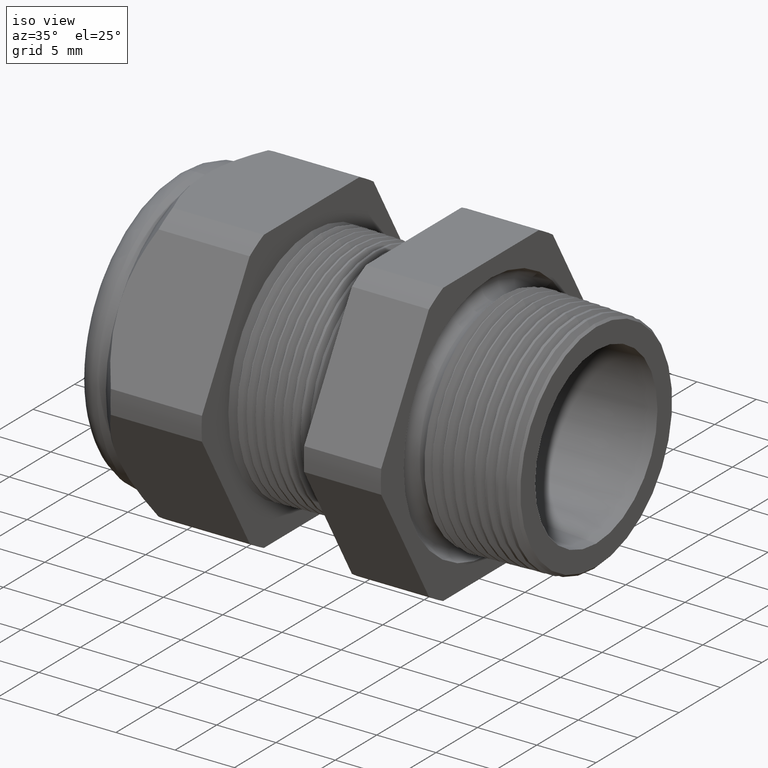
[diagram: clean part render]
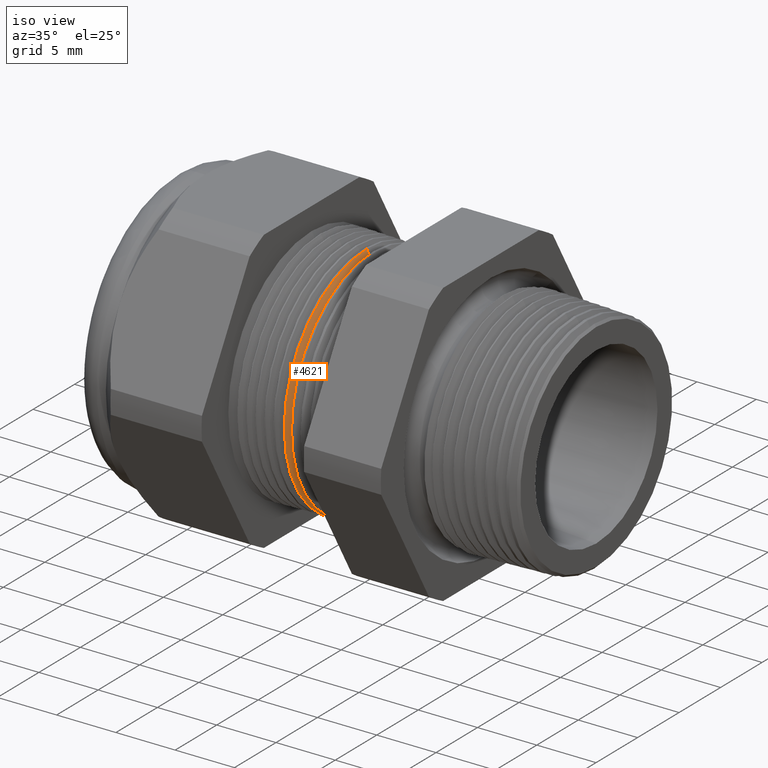
[diagram: same view with one face highlighted and labeled with its STEP entity id]
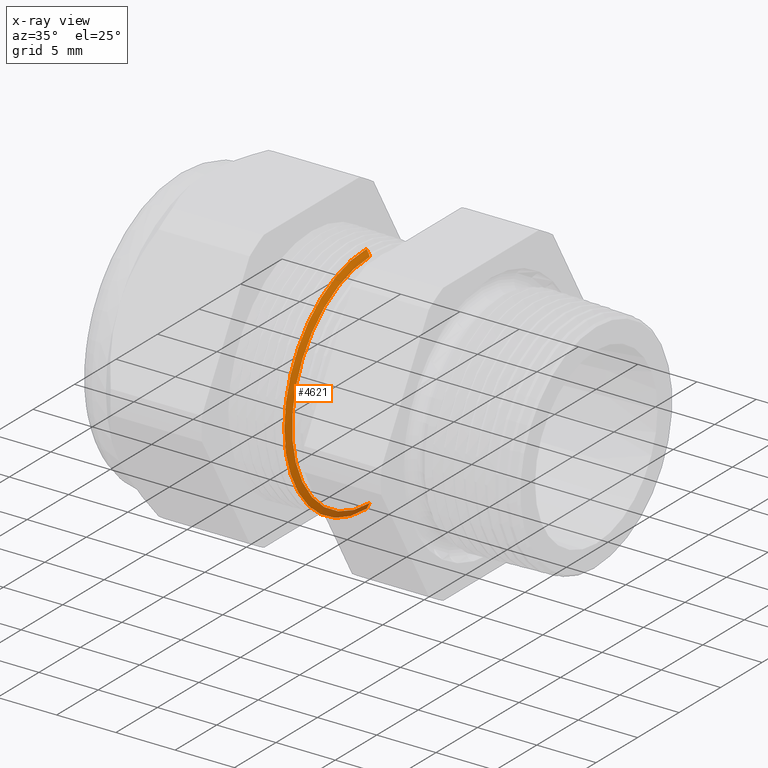
[diagram: x-ray of the same camera — body ghosted, the highlighted face saturated]
A machine part, iso view. The second image highlights one B-rep face of the part: STEP entity #4621.
The next image is the same camera in x-ray: the body ghosted, the highlighted face saturated — about 11% of this face is hidden behind the body in this view.
In plain terms, the highlighted conical surface has half-angle 61.5 deg.
Its self-contained STEP definition (entity closure, byte-faithful):
#1014 = DIRECTION ( 'NONE',  ( 0.0000000000000000000, 0.0000000000000000000, 1.000000000000000000 ) ) ;
#1015 = DIRECTION ( 'NONE',  ( 1.000000000000000000, 0.0000000000000000000, 0.0000000000000000000 ) ) ;
#1016 = AXIS2_PLACEMENT_3D ( 'NONE', #1026, #1015, #1014 ) ;
#1017 = CIRCLE ( 'NONE', #1016, 0.3902185524750838600 ) ;
#1026 = CARTESIAN_POINT ( 'NONE',  ( -0.7228369566799665000, 0.0000000000000000000, 0.0000000000000000000 ) ) ;
#1160 = CARTESIAN_POINT ( 'NONE',  ( -0.7228369566799665000, 4.779778303123113600E-017, -0.3902185524750838600 ) ) ;
#1175 = DIRECTION ( 'NONE',  ( -0.4771587602596235600, 1.076240564057384600E-016, -0.8788171126619570600 ) ) ;
#1176 = VECTOR ( 'NONE', #1175, 39.37007874015748900 ) ;
#1177 = CARTESIAN_POINT ( 'NONE',  ( -0.7254330708661419500, 4.837354856632045600E-017, -0.3950000000000000200 ) ) ;
#1178 = LINE ( 'NONE', #1177, #1176 ) ;
#1181 = CARTESIAN_POINT ( 'NONE',  ( -0.7228369566799665000, 0.0000000000000000000, 0.3902185524750838600 ) ) ;
#1182 = DIRECTION ( 'NONE',  ( -0.4771587602596235600, 0.0000000000000000000, 0.8788171126619570600 ) ) ;
#1183 = VECTOR ( 'NONE', #1182, 39.37007874015748900 ) ;
#1184 = CARTESIAN_POINT ( 'NONE',  ( -0.7254330708661419500, 0.0000000000000000000, 0.3950000000000000200 ) ) ;
#1185 = LINE ( 'NONE', #1184, #1183 ) ;
#1928 = CARTESIAN_POINT ( 'NONE',  ( -0.7116586839320377900, 0.0000000000000000000, 0.3696307351718083900 ) ) ;
#1929 = CARTESIAN_POINT ( 'NONE',  ( -0.7116586839320377900, 4.652734989755814500E-017, -0.3696307351718083900 ) ) ;
#2496 = CARTESIAN_POINT ( 'NONE',  ( -0.7116586839320377900, 0.0000000000000000000, 0.0000000000000000000 ) ) ;
#2497 = AXIS2_PLACEMENT_3D ( 'NONE', #2496, #3708, #3709 ) ;
#2757 = DIRECTION ( 'NONE',  ( 0.0000000000000000000, 0.0000000000000000000, 1.000000000000000000 ) ) ;
#2758 = DIRECTION ( 'NONE',  ( -1.000000000000000000, 0.0000000000000000000, 0.0000000000000000000 ) ) ;
#2759 = CARTESIAN_POINT ( 'NONE',  ( -0.7254330708661419500, 0.0000000000000000000, 0.0000000000000000000 ) ) ;
#2760 = AXIS2_PLACEMENT_3D ( 'NONE', #2759, #2758, #2757 ) ;
#2761 = CIRCLE ( 'NONE', #2497, 0.3696307351718083900 ) ;
#2762 = CONICAL_SURFACE ( 'NONE', #2760, 0.3950000000000000200, 1.073377489976495400 ) ;
#2763 = FACE_OUTER_BOUND ( 'NONE', #4622, .T. ) ;
#3633 = EDGE_CURVE ( 'NONE', #3704, #3717, #1017, .T. ) ;
#3700 = EDGE_CURVE ( 'NONE', #4088, #3704, #1185, .T. ) ;
#3704 = VERTEX_POINT ( 'NONE', #1181 ) ;
#3708 = DIRECTION ( 'NONE',  ( 1.000000000000000000, 0.0000000000000000000, 0.0000000000000000000 ) ) ;
#3709 = DIRECTION ( 'NONE',  ( 0.0000000000000000000, 0.0000000000000000000, -1.000000000000000000 ) ) ;
#3710 = EDGE_CURVE ( 'NONE', #4087, #3717, #1178, .T. ) ;
#3717 = VERTEX_POINT ( 'NONE', #1160 ) ;
#4087 = VERTEX_POINT ( 'NONE', #1929 ) ;
#4088 = VERTEX_POINT ( 'NONE', #1928 ) ;
#4621 = ADVANCED_FACE ( 'NONE', ( #2763 ), #2762, .T. ) ;
#4622 = EDGE_LOOP ( 'NONE', ( #4623, #4624, #4626, #4627 ) ) ;
#4623 = ORIENTED_EDGE ( 'NONE', *, *, #3710, .F. ) ;
#4624 = ORIENTED_EDGE ( 'NONE', *, *, #4625, .F. ) ;
#4625 = EDGE_CURVE ( 'NONE', #4088, #4087, #2761, .T. ) ;
#4626 = ORIENTED_EDGE ( 'NONE', *, *, #3700, .T. ) ;
#4627 = ORIENTED_EDGE ( 'NONE', *, *, #3633, .T. ) ;